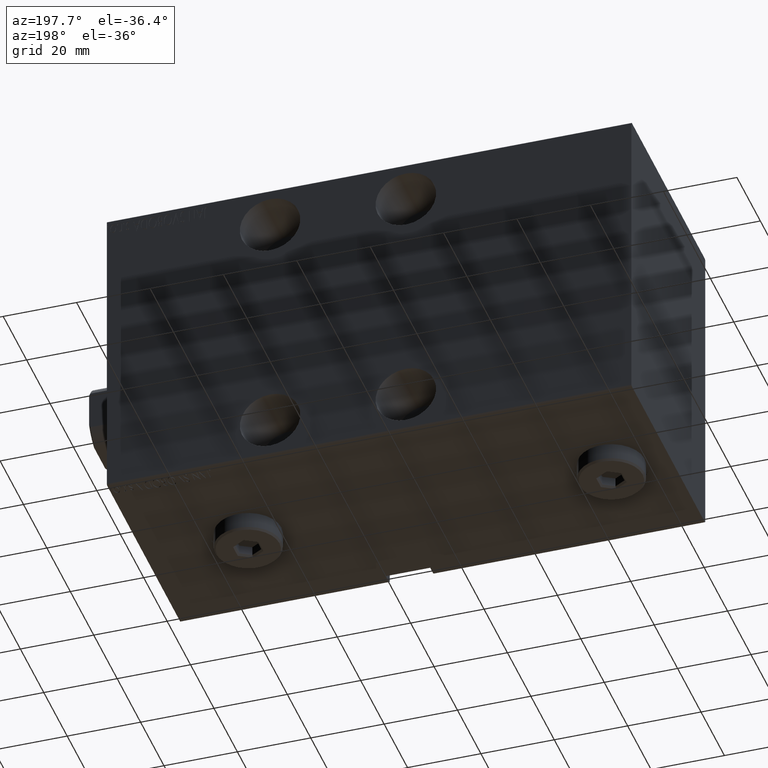
[diagram: clean part render]
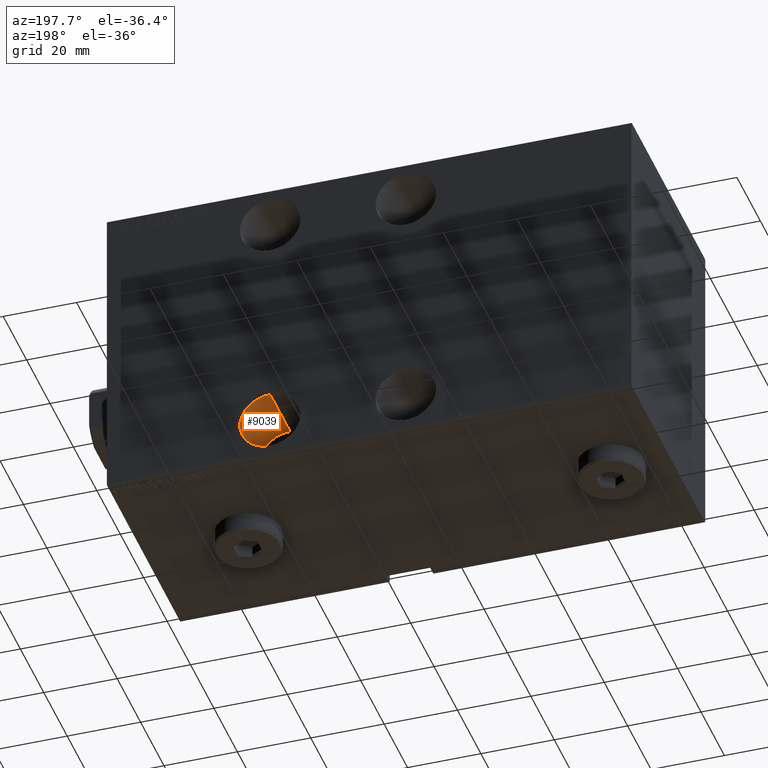
[diagram: same view with one face highlighted and labeled with its STEP entity id]
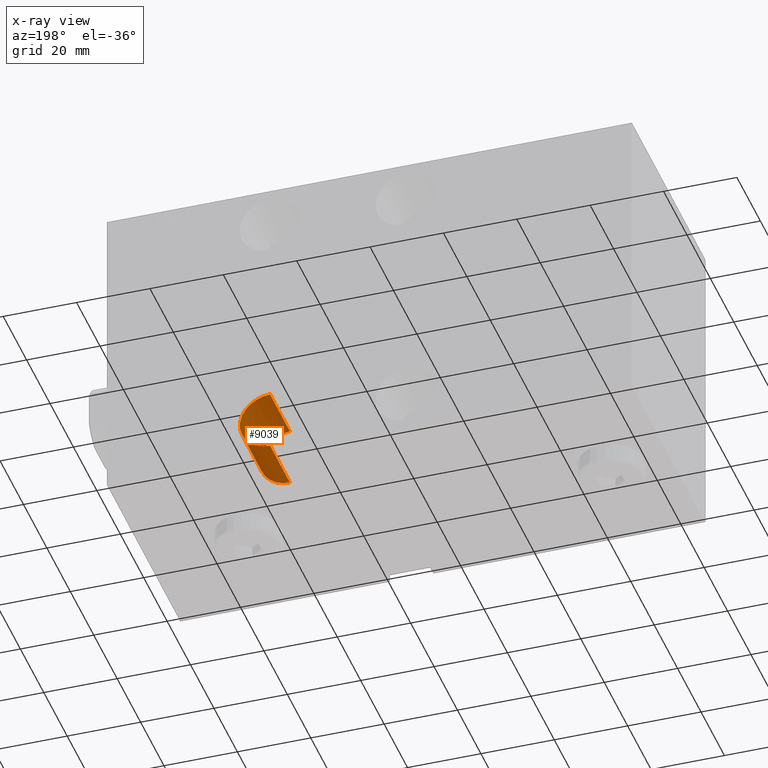
[diagram: x-ray of the same camera — body ghosted, the highlighted face saturated]
A machine part, auxiliary view. The second image highlights one B-rep face of the part: STEP entity #9039.
The next image is the same camera in x-ray: the body ghosted, the highlighted face saturated — about 0% of this face is hidden behind the body in this view.
In plain terms, the highlighted cylindrical surface (edge-blend (fillet) strip) has radius 8.25 mm, axis along (-0, 1, 0).
Its self-contained STEP definition (entity closure, byte-faithful):
#7 = LINE ( 'NONE', #20892, #30627 ) ;
#395 = CIRCLE ( 'NONE', #6128, 8.250000000000000000 ) ;
#3957 = ORIENTED_EDGE ( 'NONE', *, *, #7324, .T. ) ;
#6048 = EDGE_CURVE ( 'NONE', #11408, #35363, #18516, .T. ) ;
#6128 = AXIS2_PLACEMENT_3D ( 'NONE', #31347, #28404, #38776 ) ;
#6341 = CARTESIAN_POINT ( 'NONE',  ( 44.50000000000000000, -14.49999999999999289, -39.75000000000000711 ) ) ;
#7324 = EDGE_CURVE ( 'NONE', #14502, #37925, #7, .T. ) ;
#8263 = ORIENTED_EDGE ( 'NONE', *, *, #41149, .F. ) ;
#8642 = ORIENTED_EDGE ( 'NONE', *, *, #14586, .T. ) ;
#9039 = ADVANCED_FACE ( 'NONE', ( #21355 ), #35055, .F. ) ;
#9060 = DIRECTION ( 'NONE',  ( -0.000000000000000000, -1.000000000000000000, -0.000000000000000000 ) ) ;
#10619 = AXIS2_PLACEMENT_3D ( 'NONE', #14624, #42467, #14405 ) ;
#10947 = CARTESIAN_POINT ( 'NONE',  ( 44.50000000000000000, -31.49999999999999289, -31.50000000000000711 ) ) ;
#11408 = VERTEX_POINT ( 'NONE', #6341 ) ;
#14405 = DIRECTION ( 'NONE',  ( 0.000000000000000000, 0.000000000000000000, -1.000000000000000000 ) ) ;
#14502 = VERTEX_POINT ( 'NONE', #22914 ) ;
#14586 = EDGE_CURVE ( 'NONE', #37925, #35363, #40098, .T. ) ;
#14624 = CARTESIAN_POINT ( 'NONE',  ( 44.50000000000000000, -14.49999999999999289, -31.50000000000000711 ) ) ;
#14847 = VECTOR ( 'NONE', #9060, 1000.000000000000000 ) ;
#16356 = CARTESIAN_POINT ( 'NONE',  ( 44.50000000000000000, -31.49999999999999289, -39.75000000000000711 ) ) ;
#18516 = LINE ( 'NONE', #21873, #14847 ) ;
#20892 = CARTESIAN_POINT ( 'NONE',  ( 44.50000000000000000, -14.49999999999999289, -23.25000000000001066 ) ) ;
#21355 = FACE_OUTER_BOUND ( 'NONE', #26515, .T. ) ;
#21873 = CARTESIAN_POINT ( 'NONE',  ( 44.50000000000000000, -14.49999999999999289, -39.75000000000000711 ) ) ;
#22914 = CARTESIAN_POINT ( 'NONE',  ( 44.50000000000000000, -14.49999999999999289, -23.25000000000001066 ) ) ;
#26113 = ORIENTED_EDGE ( 'NONE', *, *, #6048, .F. ) ;
#26515 = EDGE_LOOP ( 'NONE', ( #8263, #3957, #8642, #26113 ) ) ;
#26932 = DIRECTION ( 'NONE',  ( 0.000000000000000000, 0.000000000000000000, -1.000000000000000000 ) ) ;
#28404 = DIRECTION ( 'NONE',  ( 0.000000000000000000, -1.000000000000000000, 0.000000000000000000 ) ) ;
#30627 = VECTOR ( 'NONE', #31203, 1000.000000000000000 ) ;
#31203 = DIRECTION ( 'NONE',  ( -0.000000000000000000, -1.000000000000000000, -0.000000000000000000 ) ) ;
#31347 = CARTESIAN_POINT ( 'NONE',  ( 44.50000000000000000, -14.49999999999999289, -31.50000000000000711 ) ) ;
#35055 = CYLINDRICAL_SURFACE ( 'NONE', #10619, 8.250000000000000000 ) ;
#35363 = VERTEX_POINT ( 'NONE', #16356 ) ;
#37223 = AXIS2_PLACEMENT_3D ( 'NONE', #10947, #44025, #26932 ) ;
#37925 = VERTEX_POINT ( 'NONE', #39713 ) ;
#38776 = DIRECTION ( 'NONE',  ( 0.000000000000000000, 0.000000000000000000, -1.000000000000000000 ) ) ;
#39713 = CARTESIAN_POINT ( 'NONE',  ( 44.50000000000000000, -31.49999999999999289, -23.25000000000001066 ) ) ;
#40098 = CIRCLE ( 'NONE', #37223, 8.250000000000000000 ) ;
#41149 = EDGE_CURVE ( 'NONE', #14502, #11408, #395, .T. ) ;
#42467 = DIRECTION ( 'NONE',  ( -0.000000000000000000, -1.000000000000000000, -0.000000000000000000 ) ) ;
#44025 = DIRECTION ( 'NONE',  ( 0.000000000000000000, -1.000000000000000000, 0.000000000000000000 ) ) ;